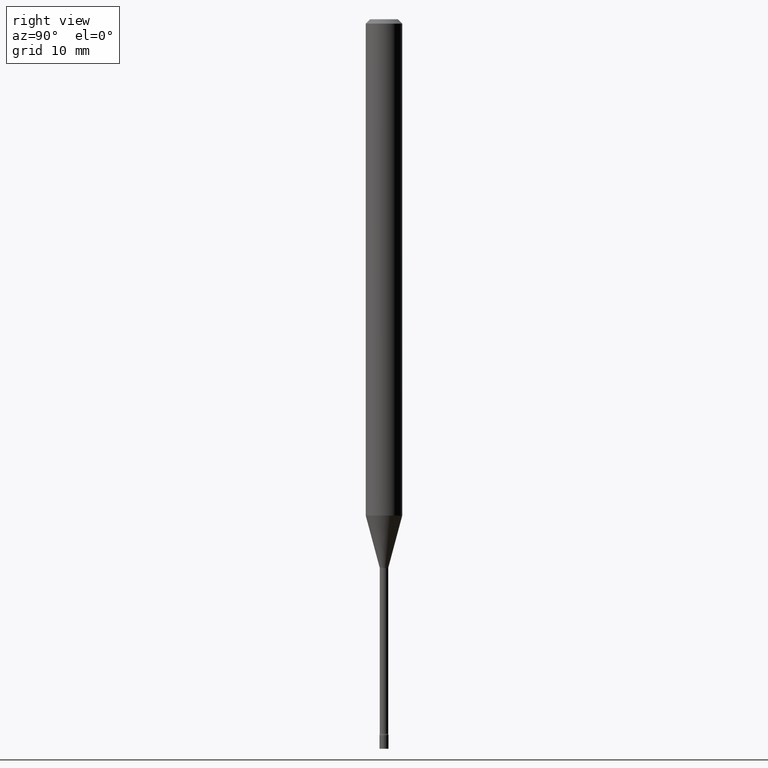
[diagram: clean part render]
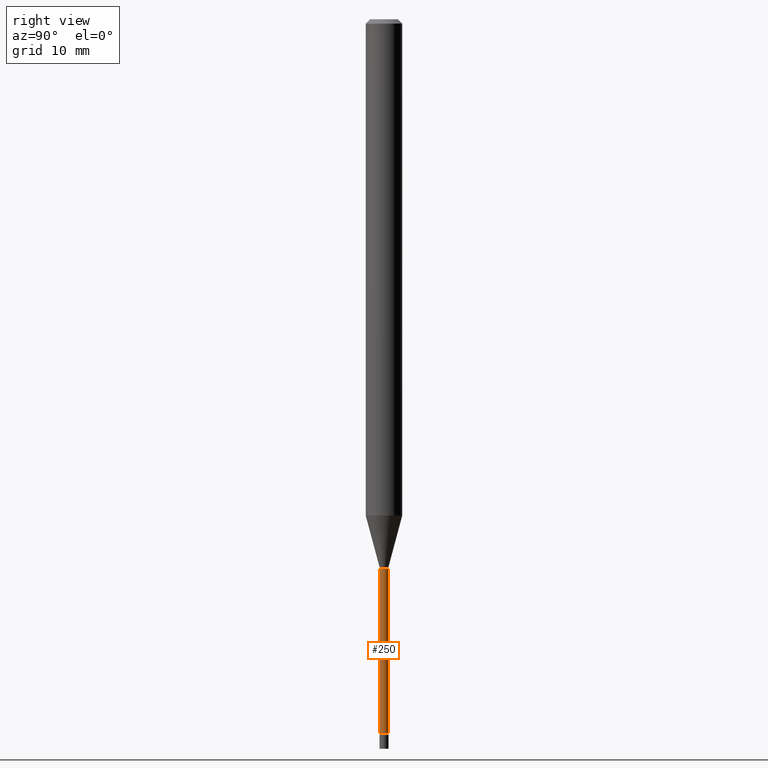
[diagram: same view with one face highlighted and labeled with its STEP entity id]
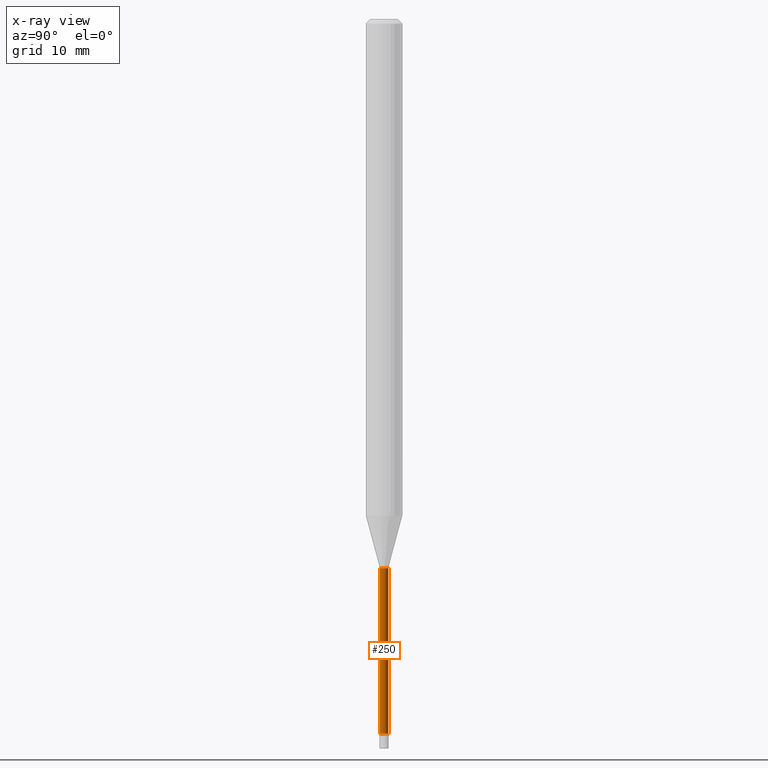
[diagram: x-ray of the same camera — body ghosted, the highlighted face saturated]
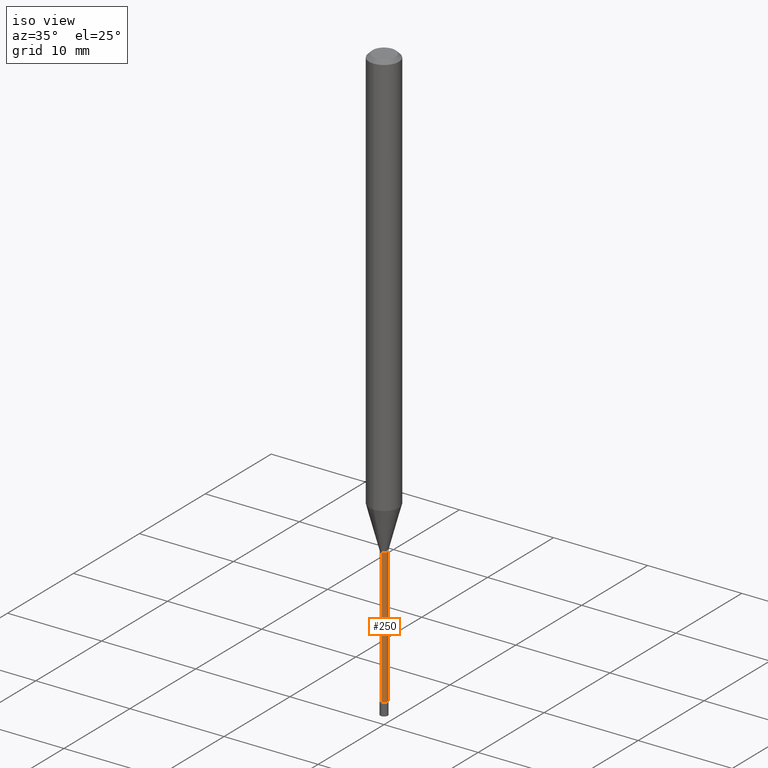
[diagram: same view with one face highlighted and labeled with its STEP entity id]
A machine part, right view. The second image highlights one B-rep face of the part: STEP entity #250.
The next image is the same camera in x-ray: the body ghosted, the highlighted face saturated — about 0% of this face is hidden behind the body in this view.
A second angle (iso view) of the same face is appended — the face is thin or edge-on in the first view.
In plain terms, the highlighted cylindrical surface (edge-blend (fillet) strip) has radius 0.3696 mm, axis along (-0, 0, 1).
Its self-contained STEP definition (entity closure, byte-faithful):
#1 = LINE ( 'NONE', #209, #210 ) ;
#3 = CARTESIAN_POINT ( 'NONE',  ( 1.067590460480152170E-16, 0.01454999999999149508, -2.447746667724196357 ) ) ;
#9 = DIRECTION ( 'NONE',  ( -2.445477315059340608E-29, 3.491469153650990726E-15, 1.000000000000000000 ) ) ;
#19 = VERTEX_POINT ( 'NONE', #472 ) ;
#48 = DIRECTION ( 'NONE',  ( -2.445477315059340608E-29, 3.491469153650990726E-15, 1.000000000000000000 ) ) ;
#49 = EDGE_CURVE ( 'NONE', #399, #360, #367, .T. ) ;
#85 = EDGE_CURVE ( 'NONE', #352, #19, #1, .T. ) ;
#92 = AXIS2_PLACEMENT_3D ( 'NONE', #310, #156, #117 ) ;
#100 = EDGE_LOOP ( 'NONE', ( #482, #197, #518, #262 ) ) ;
#117 = DIRECTION ( 'NONE',  ( -6.982962677686265922E-15, -1.000000000000000000, 0.000000000000000000 ) ) ;
#134 = CARTESIAN_POINT ( 'NONE',  ( -1.016021069602891557E-16, -0.01455000000000657157, -1.881974787463811083 ) ) ;
#156 = DIRECTION ( 'NONE',  ( -2.445477315059340608E-29, 3.491469153650990726E-15, 1.000000000000000000 ) ) ;
#175 = CARTESIAN_POINT ( 'NONE',  ( -1.016021069602755972E-16, -0.01455000000000858731, -2.447746667724196357 ) ) ;
#197 = ORIENTED_EDGE ( 'NONE', *, *, #85, .T. ) ;
#199 = EDGE_CURVE ( 'NONE', #399, #352, #383, .T. ) ;
#209 = CARTESIAN_POINT ( 'NONE',  ( 1.033839680530947034E-16, 0.01455000000000001951, -5.080087618562198931E-17 ) ) ;
#210 = VECTOR ( 'NONE', #9, 39.37007874015748143 ) ;
#218 = CARTESIAN_POINT ( 'NONE',  ( 4.602326650256374158E-29, -6.570856918378775869E-15, -1.881974787463811083 ) ) ;
#250 = ADVANCED_FACE ( 'NONE', ( #260 ), #334, .T. ) ;
#260 = FACE_OUTER_BOUND ( 'NONE', #100, .T. ) ;
#262 = ORIENTED_EDGE ( 'NONE', *, *, #49, .F. ) ;
#298 = CARTESIAN_POINT ( 'NONE',  ( 0.000000000000000000, 0.000000000000000000, 0.000000000000000000 ) ) ;
#310 = CARTESIAN_POINT ( 'NONE',  ( 5.985908948931614899E-29, -8.546231986311032858E-15, -2.447746667724196357 ) ) ;
#315 = DIRECTION ( 'NONE',  ( -6.982962677686266711E-15, -1.000000000000000000, 0.000000000000000000 ) ) ;
#334 = CYLINDRICAL_SURFACE ( 'NONE', #403, 0.01455000000000001951 ) ;
#352 = VERTEX_POINT ( 'NONE', #3 ) ;
#356 = EDGE_CURVE ( 'NONE', #360, #19, #449, .T. ) ;
#360 = VERTEX_POINT ( 'NONE', #134 ) ;
#367 = LINE ( 'NONE', #402, #438 ) ;
#376 = DIRECTION ( 'NONE',  ( -2.445477315059340608E-29, 3.491469153650990726E-15, 1.000000000000000000 ) ) ;
#378 = DIRECTION ( 'NONE',  ( -6.982962677686265922E-15, -1.000000000000000000, 3.491469153650991121E-15 ) ) ;
#383 = CIRCLE ( 'NONE', #92, 0.01455000000000004033 ) ;
#399 = VERTEX_POINT ( 'NONE', #175 ) ;
#402 = CARTESIAN_POINT ( 'NONE',  ( -1.016021069603353041E-16, -0.01455000000000001951, 5.080087618562198931E-17 ) ) ;
#403 = AXIS2_PLACEMENT_3D ( 'NONE', #298, #419, #378 ) ;
#419 = DIRECTION ( 'NONE',  ( -2.445477315059340608E-29, 3.491469153650990726E-15, 1.000000000000000000 ) ) ;
#438 = VECTOR ( 'NONE', #48, 39.37007874015748143 ) ;
#449 = CIRCLE ( 'NONE', #471, 0.01455000000000000043 ) ;
#471 = AXIS2_PLACEMENT_3D ( 'NONE', #218, #376, #315 ) ;
#472 = CARTESIAN_POINT ( 'NONE',  ( 1.033839680531546075E-16, 0.01454999999999343104, -1.881974787463811083 ) ) ;
#482 = ORIENTED_EDGE ( 'NONE', *, *, #199, .T. ) ;
#518 = ORIENTED_EDGE ( 'NONE', *, *, #356, .F. ) ;